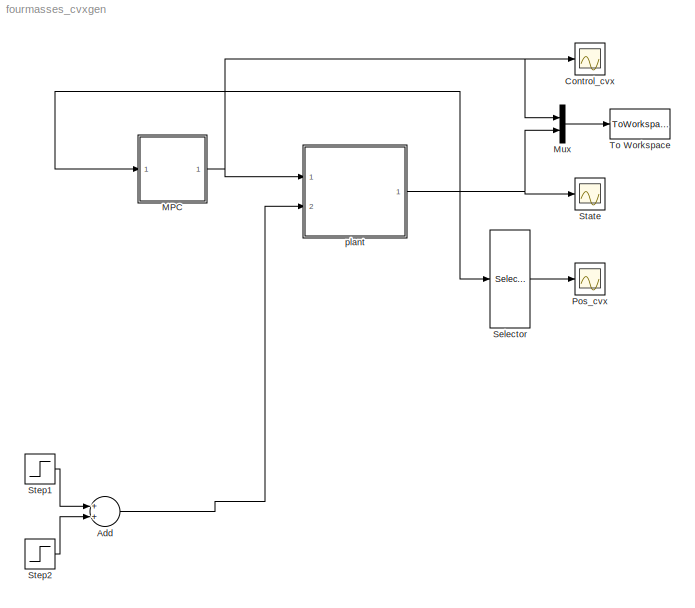
MODEL fourmasses_cvxgen
KIND model
BLOCK [Sum] Add
  InputSameDT = off
  OutDataTypeStr = Inherit: Inherit via internal rule
  Ports = [2, 1]
  SID = 277
  SaturateOnIntegerOverflow = off
BLOCK [Scope] Control_cvx
  DataFormat = StructureWithTime
  Floating = off
  NumInputPorts = 1
  Ports = [1]
  SID = 132
  SampleTime = 0
  SaveName = ScopeData1
  ShowLegends = off
  TimeRange = 60
  YMax = 0.45
  YMin = -0.5
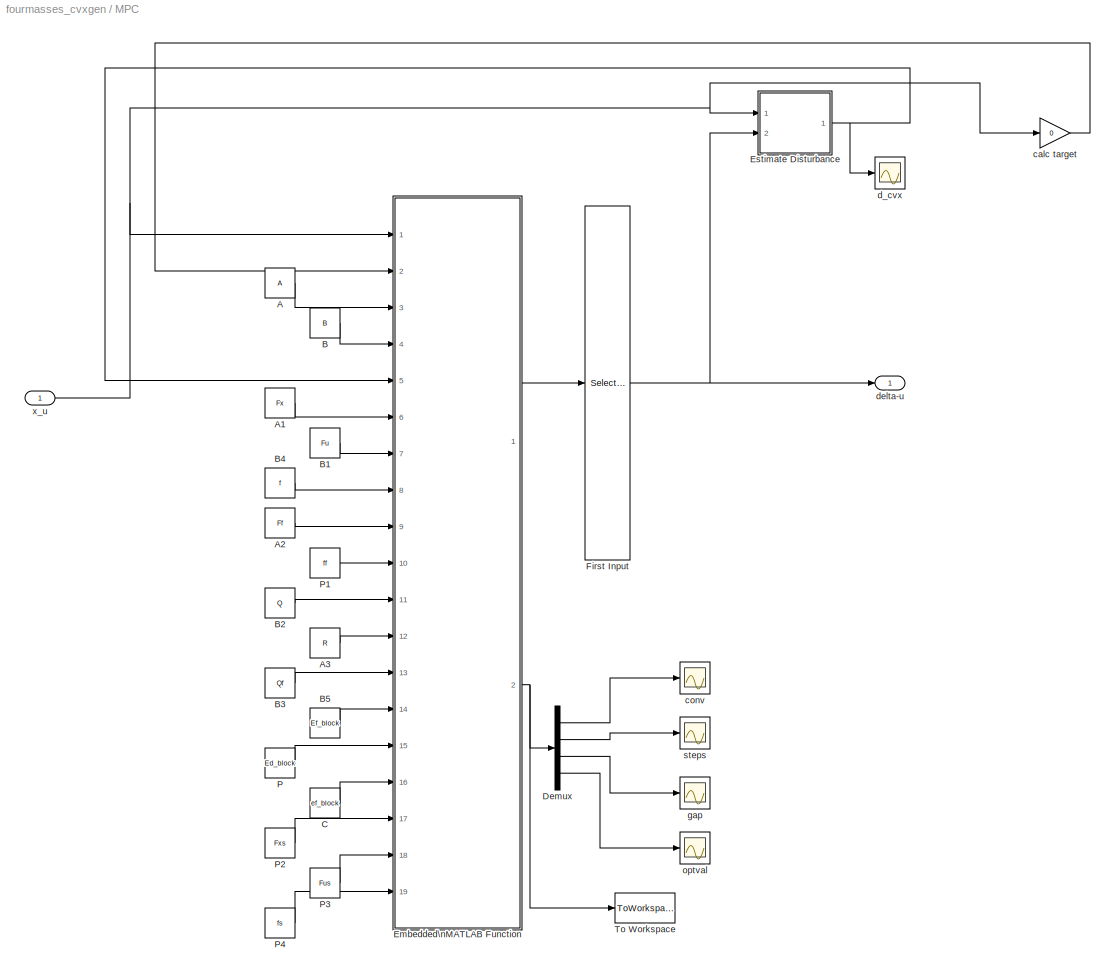
BLOCK [SubSystem] MPC
  FunctionWithSeparateData = off
  MaskHideContents = off
  MinAlgLoopOccurrences = off
  Opaque = off
  Ports = [1, 1]
  PropExecContextOutsideSubsystem = off
  RTWFcnNameOpts = Use subsystem name
  RTWFileNameOpts = Use subsystem name
  RTWSystemCode = Function
  RequestExecContextInheritance = off
  SID = 213
  SystemSampleTime = dt
  TreatAsAtomicUnit = on
BLOCK [Constant] MPC/A
  SID = 216
  Value = A
BLOCK [Constant] MPC/A1
  SID = 217
  Value = Fx
BLOCK [Constant] MPC/A2
  SID = 218
  Value = Ff
  VectorParams1D = off
BLOCK [Constant] MPC/A3
  SID = 219
  Value = R
BLOCK [Constant] MPC/B
  SID = 221
  Value = B
BLOCK [Constant] MPC/B1
  SID = 222
  Value = Fu
BLOCK [Constant] MPC/B2
  SID = 223
  Value = Q
BLOCK [Constant] MPC/B3
  SID = 224
  Value = Qf
BLOCK [Constant] MPC/B4
  SID = 225
  Value = f
BLOCK [Constant] MPC/B5
  SID = 226
  Value = Ef_block
BLOCK [Constant] MPC/C
  SID = 227
  Value = ef_block
BLOCK [Demux] MPC/Demux
  DisplayOption = bar
  Ports = [1, 4]
  SID = 244
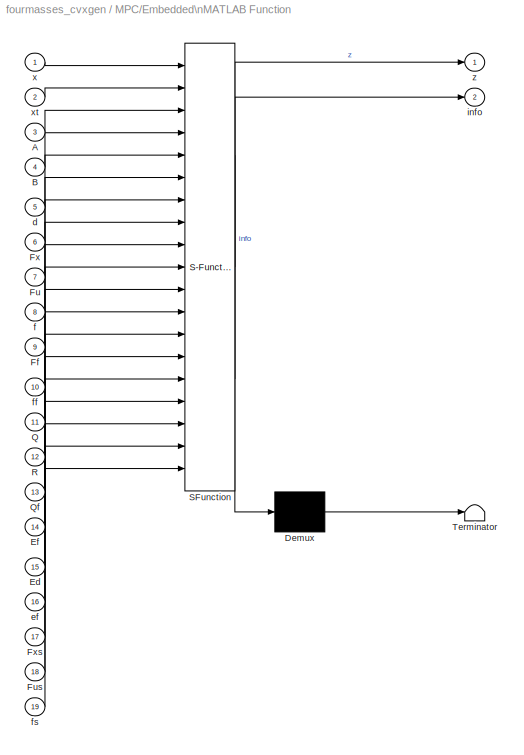
BLOCK [SubSystem] MPC/Embedded\nMATLAB Function
  ErrorFcn = Stateflow.Translate.translate
  FunctionWithSeparateData = off
  MaskDisplay = bgColor = Simulink.Root.ColorString2Rgb(get_param(gcbh, 'BackgroundColor')); image(imread('private/eml_membrane_16.png','png','BackgroundColor',bgColor(1:3)),'center'); disp([10 10 'mpcsolve_simk']);
  MaskHideContents = off
  MaskIconFrame = on
  MaskIconOpaque = on
  MaskIconRotate = none
  MaskIconUnits = normalized
  MaskPortRotate = default
  MaskSelfModifiable = on
  MinAlgLoopOccurrences = off
  Opaque = off
  PermitHierarchicalResolution = ExplicitOnly
  Ports = [19, 2]
  PropExecContextOutsideSubsystem = off
  RTWFileNameOpts = Use subsystem name
  RTWSystemCode = Auto
  RequestExecContextInheritance = off
  SFBlockType = MATLAB Function
  SID = 245
  TreatAsAtomicUnit = on
BLOCK [Demux] MPC/Embedded\nMATLAB Function/ Demux 
  Outputs = 1
  Ports = [1, 1]
  SID = 245::36
BLOCK [S-Function] MPC/Embedded\nMATLAB Function/ SFunction 
  EnableBusSupport = on
  FunctionName = sf_sfun
  PortCounts = [19 3]
  Ports = [19, 3]
  SID = 245::35
  Tag = Stateflow S-Function fourmasses_cvxgen 2
BLOCK [Terminator] MPC/Embedded\nMATLAB Function/ Terminator 
  SID = 245::37
BLOCK [Inport] MPC/Embedded\nMATLAB Function/A
  IconDisplay = Port number
  Port = 3
  SID = 245::17
BLOCK [Inport] MPC/Embedded\nMATLAB Function/B
  IconDisplay = Port number
  Port = 4
  SID = 245::22
BLOCK [Inport] MPC/Embedded\nMATLAB Function/Ed
  IconDisplay = Port number
  Port = 15
  SID = 245::42
BLOCK [Inport] MPC/Embedded\nMATLAB Function/Ef
  IconDisplay = Port number
  Port = 14
  SID = 245::33
BLOCK [Inport] MPC/Embedded\nMATLAB Function/Ff
  IconDisplay = Port number
  Port = 9
  SID = 245::25
BLOCK [Inport] MPC/Embedded\nMATLAB Function/Fu
  IconDisplay = Port number
  Port = 7
  SID = 245::24
BLOCK [Inport] MPC/Embedded\nMATLAB Function/Fus
  IconDisplay = Port number
  Port = 18
  SID = 245::38
BLOCK [Inport] MPC/Embedded\nMATLAB Function/Fx
  IconDisplay = Port number
  Port = 6
  SID = 245::23
BLOCK [Inport] MPC/Embedded\nMATLAB Function/Fxs
  IconDisplay = Port number
  Port = 17
  SID = 245::34
BLOCK [Inport] MPC/Embedded\nMATLAB Function/Q
  IconDisplay = Port number
  Port = 11
  SID = 245::26
BLOCK [Inport] MPC/Embedded\nMATLAB Function/Qf
  IconDisplay = Port number
  Port = 13
  SID = 245::28
BLOCK [Inport] MPC/Embedded\nMATLAB Function/R
  IconDisplay = Port number
  Port = 12
  SID = 245::27
BLOCK [Inport] MPC/Embedded\nMATLAB Function/d
  IconDisplay = Port number
  Port = 5
  SID = 245::41
BLOCK [Inport] MPC/Embedded\nMATLAB Function/ef
  IconDisplay = Port number
  Port = 16
  SID = 245::43
BLOCK [Inport] MPC/Embedded\nMATLAB Function/f
  IconDisplay = Port number
  Port = 8
  SID = 245::30
BLOCK [Inport] MPC/Embedded\nMATLAB Function/ff
  IconDisplay = Port number
  Port = 10
  SID = 245::31
BLOCK [Inport] MPC/Embedded\nMATLAB Function/fs
  IconDisplay = Port number
  Port = 19
  SID = 245::32
BLOCK [Outport] MPC/Embedded\nMATLAB Function/info
  IconDisplay = Port number
  Port = 2
  SID = 245::29
BLOCK [Inport] MPC/Embedded\nMATLAB Function/x
  IconDisplay = Port number
  SID = 245::39
BLOCK [Inport] MPC/Embedded\nMATLAB Function/xt
  IconDisplay = Port number
  Port = 2
  SID = 245::40
BLOCK [Outport] MPC/Embedded\nMATLAB Function/z
  IconDisplay = Port number
  SID = 245::5
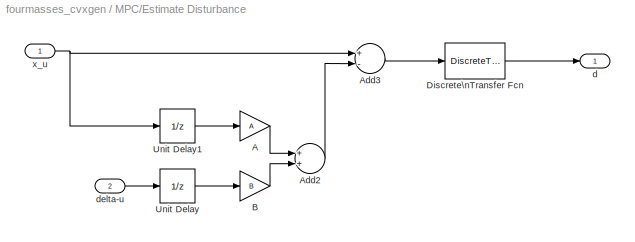
BLOCK [SubSystem] MPC/Estimate Disturbance
  FunctionWithSeparateData = off
  MaskHideContents = off
  MinAlgLoopOccurrences = off
  Opaque = off
  Ports = [2, 1]
  PropExecContextOutsideSubsystem = off
  RTWSystemCode = Auto
  RequestExecContextInheritance = off
  SID = 246
BLOCK [Gain] MPC/Estimate Disturbance/A
  Gain = A
  Multiplication = Matrix(K*u)
  OutDataTypeStr = Inherit: Inherit via internal rule
  ParamDataTypeStr = Inherit: Inherit via internal rule
  SID = 249
  SaturateOnIntegerOverflow = off
BLOCK [Sum] MPC/Estimate Disturbance/Add2
  InputSameDT = off
  OutDataTypeStr = Inherit: Inherit via internal rule
  Ports = [2, 1]
  SID = 250
  SaturateOnIntegerOverflow = off
BLOCK [Sum] MPC/Estimate Disturbance/Add3
  InputSameDT = off
  Inputs = +-
  OutDataTypeStr = Inherit: Inherit via internal rule
  Ports = [2, 1]
  SID = 251
  SaturateOnIntegerOverflow = off
BLOCK [Gain] MPC/Estimate Disturbance/B
  Gain = B
  Multiplication = Matrix(K*u)
  OutDataTypeStr = Inherit: Inherit via internal rule
  ParamDataTypeStr = Inherit: Inherit via internal rule
  SID = 252
  SaturateOnIntegerOverflow = off
BLOCK [DiscreteTransferFcn] MPC/Estimate Disturbance/Discrete\nTransfer Fcn
  Denominator = [1 -0.5]
  InputPortMap = u0
  Numerator = [0.5]
  Ports = [1, 1]
  SID = 253
BLOCK [UnitDelay] MPC/Estimate Disturbance/Unit Delay
  InputProcessing = Elements as channels (sample based)
  SID = 254
  SampleTime = -1
BLOCK [UnitDelay] MPC/Estimate Disturbance/Unit Delay1
  InputProcessing = Elements as channels (sample based)
  SID = 255
  SampleTime = -1
BLOCK [Outport] MPC/Estimate Disturbance/d
  IconDisplay = Port number
  SID = 256
BLOCK [Inport] MPC/Estimate Disturbance/delta-u
  IconDisplay = Port number
  Port = 2
  SID = 248
BLOCK [Inport] MPC/Estimate Disturbance/x_u
  IconDisplay = Port number
  SID = 247
BLOCK [Selector] MPC/First Input
  IndexOptions = Index vector (dialog)
  Indices = 1:2
  InputPortWidth = T*(n+m)
  OutputSizes = 1
  Ports = [1, 1]
  SID = 257
BLOCK [Constant] MPC/P
  SID = 260
  Value = Ed_block
BLOCK [Constant] MPC/P1
  SID = 261
  Value = ff
BLOCK [Constant] MPC/P2
  SID = 262
  Value = Fxs
BLOCK [Constant] MPC/P3
  SID = 263
  Value = Fus
BLOCK [Constant] MPC/P4
  SID = 264
  Value = fs
BLOCK [ToWorkspace] MPC/To Workspace
  MaxDataPoints = inf
  Ports = [1]
  SID = 265
  SampleTime = -1
  VariableName = info_cvx
BLOCK [Gain] MPC/calc target
  Gain = 0
  OutDataTypeStr = Inherit: Inherit via internal rule
  ParamDataTypeStr = Inherit: Inherit via internal rule
  SID = 266
  SaturateOnIntegerOverflow = off
BLOCK [Scope] MPC/conv
  DataFormat = StructureWithTime
  Floating = off
  NumInputPorts = 1
  Ports = [1]
  SID = 267
  SampleTime = 0
  SaveName = ScopeData3
  ShowLegends = off
  YMax = 2.75e-08
  YMin = 1.65436e-24
  ZoomMode = yonly
BLOCK [Scope] MPC/d_cvx
  DataFormat = StructureWithTime
  Floating = off
  NumInputPorts = 1
  Ports = [1]
  SID = 269
  SampleTime = 0
  SaveName = ScopeData6
  ShowLegends = off
  YMax = 0.002
  YMin = -0.00025
  ZoomMode = yonly
BLOCK [Outport] MPC/delta-u
  IconDisplay = Port number
  SID = 276
BLOCK [Scope] MPC/gap
  DataFormat = StructureWithTime
  Floating = off
  NumInputPorts = 1
  Ports = [1]
  SID = 271
  SampleTime = 0
  SaveName = ScopeData5
  ShowLegends = off
  YMax = 2.75e-08
  YMin = 1.65436e-24
  ZoomMode = yonly
BLOCK [Scope] MPC/optval
  DataFormat = StructureWithTime
  Floating = off
  NumInputPorts = 1
  Ports = [1]
  SID = 273
  SampleTime = 0
  SaveName = ScopeData9
  ShowLegends = off
  YMax = 2.75e-08
  YMin = 1.65436e-24
  ZoomMode = yonly
BLOCK [Scope] MPC/steps
  DataFormat = StructureWithTime
  Floating = off
  NumInputPorts = 1
  Ports = [1]
  SID = 274
  SampleTime = 0
  SaveName = ScopeData4
  ShowLegends = off
  YMax = 2.75e-08
  YMin = 1.65436e-24
  ZoomMode = yonly
BLOCK [Inport] MPC/x_u
  IconDisplay = Port number
  SID = 214
BLOCK [Mux] Mux
  DisplayOption = bar
  Inputs = 2
  Ports = [2, 1]
  SID = 280
BLOCK [Scope] Pos_cvx
  DataFormat = StructureWithTime
  Floating = off
  NumInputPorts = 1
  Ports = [1]
  SID = 136
  SampleTime = 0
  SaveName = ScopeData2
  ShowLegends = off
  YMax = 0.8
  YMin = -0.7
  ZoomMode = yonly
BLOCK [Selector] Selector
  IndexOptions = Index vector (dialog)
  Indices = [1:4]
  InputPortWidth = 8
  OutputSizes = 1
  Ports = [1, 1]
  SID = 135
BLOCK [Scope] State
  DataFormat = StructureWithTime
  Floating = off
  NumInputPorts = 1
  Ports = [1]
  SID = 46
  SampleTime = 0
  ShowLegends = off
  YMax = 0.8
  YMin = -0.7
BLOCK [Step] Step1
  After = [0.5;0;0;0]
  Before = zeros(4,1)
  SID = 278
  SampleTime = 0
  Time = 10
BLOCK [Step] Step2
  After = -[0.5;0;0;0]
  Before = zeros(4,1)
  SID = 279
  SampleTime = 0
  Time = 30
BLOCK [ToWorkspace] To Workspace
  MaxDataPoints = inf
  Ports = [1]
  SID = 281
  SampleTime = -1
  VariableName = simout_cvx
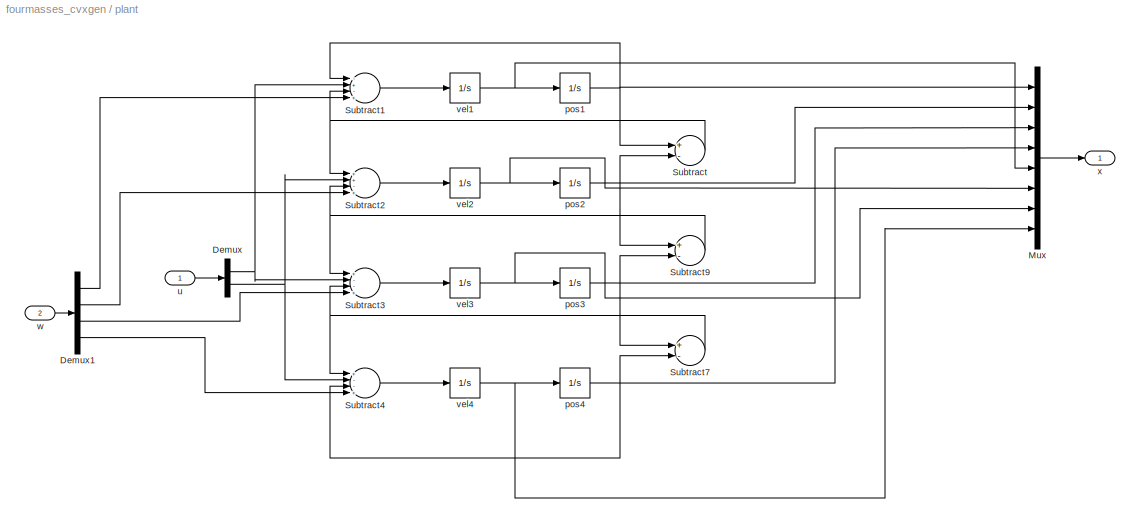
BLOCK [SubSystem] plant
  FunctionWithSeparateData = off
  MaskHideContents = off
  MinAlgLoopOccurrences = off
  Opaque = off
  Ports = [2, 1]
  PropExecContextOutsideSubsystem = off
  RTWSystemCode = Auto
  RequestExecContextInheritance = off
  SID = 26
BLOCK [Demux] plant/Demux
  DisplayOption = bar
  Outputs = 2
  Ports = [1, 2]
  SID = 37
BLOCK [Demux] plant/Demux1
  DisplayOption = bar
  Ports = [1, 4]
  SID = 48
BLOCK [Mux] plant/Mux
  DisplayOption = bar
  Inputs = 8
  Ports = [8, 1]
  SID = 39
BLOCK [Sum] plant/Subtract
  InputSameDT = off
  Inputs = +-
  OutDataTypeStr = Inherit: Inherit via internal rule
  Ports = [2, 1]
  SID = 13
  SaturateOnIntegerOverflow = off
BLOCK [Sum] plant/Subtract1
  InputSameDT = off
  Inputs = -+-+
  OutDataTypeStr = Inherit: Inherit via internal rule
  Ports = [4, 1]
  SID = 14
  SaturateOnIntegerOverflow = off
BLOCK [Sum] plant/Subtract2
  InputSameDT = off
  Inputs = ++-+
  OutDataTypeStr = Inherit: Inherit via internal rule
  Ports = [4, 1]
  SID = 15
  SaturateOnIntegerOverflow = off
BLOCK [Sum] plant/Subtract3
  InputSameDT = off
  Inputs = +--+
  OutDataTypeStr = Inherit: Inherit via internal rule
  Ports = [4, 1]
  SID = 16
  SaturateOnIntegerOverflow = off
BLOCK [Sum] plant/Subtract4
  InputSameDT = off
  Inputs = +--+
  OutDataTypeStr = Inherit: Inherit via internal rule
  Ports = [4, 1]
  SID = 17
  SaturateOnIntegerOverflow = off
BLOCK [Sum] plant/Subtract7
  InputSameDT = off
  Inputs = +-
  OutDataTypeStr = Inherit: Inherit via internal rule
  Ports = [2, 1]
  SID = 20
  SaturateOnIntegerOverflow = off
BLOCK [Sum] plant/Subtract9
  InputSameDT = off
  Inputs = +-
  OutDataTypeStr = Inherit: Inherit via internal rule
  Ports = [2, 1]
  SID = 22
  SaturateOnIntegerOverflow = off
BLOCK [Integrator] plant/pos1
  Ports = [1, 1]
  SID = 1
BLOCK [Integrator] plant/pos2
  Ports = [1, 1]
  SID = 3
BLOCK [Integrator] plant/pos3
  Ports = [1, 1]
  SID = 5
BLOCK [Integrator] plant/pos4
  Ports = [1, 1]
  SID = 7
BLOCK [Inport] plant/u
  IconDisplay = Port number
  SID = 38
BLOCK [Integrator] plant/vel1
  Ports = [1, 1]
  SID = 2
BLOCK [Integrator] plant/vel2
  Ports = [1, 1]
  SID = 4
BLOCK [Integrator] plant/vel3
  Ports = [1, 1]
  SID = 6
BLOCK [Integrator] plant/vel4
  Ports = [1, 1]
  SID = 8
BLOCK [Inport] plant/w
  IconDisplay = Port number
  Port = 2
  SID = 49
BLOCK [Outport] plant/x
  IconDisplay = Port number
  SID = 40
LINE Add:1 -> plant:2
LINE MPC/A1:1 -> MPC/Embedded\nMATLAB Function:6
LINE MPC/A2:1 -> MPC/Embedded\nMATLAB Function:9
LINE MPC/A3:1 -> MPC/Embedded\nMATLAB Function:12
LINE MPC/A:1 -> MPC/Embedded\nMATLAB Function:3
LINE MPC/B1:1 -> MPC/Embedded\nMATLAB Function:7
LINE MPC/B2:1 -> MPC/Embedded\nMATLAB Function:11
LINE MPC/B3:1 -> MPC/Embedded\nMATLAB Function:13
LINE MPC/B4:1 -> MPC/Embedded\nMATLAB Function:8
LINE MPC/B5:1 -> MPC/Embedded\nMATLAB Function:14
LINE MPC/B:1 -> MPC/Embedded\nMATLAB Function:4
LINE MPC/C:1 -> MPC/Embedded\nMATLAB Function:16
LINE MPC/Demux:1 -> MPC/conv:1
LINE MPC/Demux:2 -> MPC/steps:1
LINE MPC/Demux:3 -> MPC/gap:1
LINE MPC/Demux:4 -> MPC/optval:1
LINE MPC/Embedded\nMATLAB Function/ Demux :1 -> MPC/Embedded\nMATLAB Function/ Terminator :1
LINE MPC/Embedded\nMATLAB Function/ SFunction :1 -> MPC/Embedded\nMATLAB Function/ Demux :1
LINE MPC/Embedded\nMATLAB Function/ SFunction :2 -> MPC/Embedded\nMATLAB Function/z:1
LINE MPC/Embedded\nMATLAB Function/ SFunction :3 -> MPC/Embedded\nMATLAB Function/info:1
LINE MPC/Embedded\nMATLAB Function/A:1 -> MPC/Embedded\nMATLAB Function/ SFunction :3
LINE MPC/Embedded\nMATLAB Function/B:1 -> MPC/Embedded\nMATLAB Function/ SFunction :4
LINE MPC/Embedded\nMATLAB Function/Ed:1 -> MPC/Embedded\nMATLAB Function/ SFunction :15
LINE MPC/Embedded\nMATLAB Function/Ef:1 -> MPC/Embedded\nMATLAB Function/ SFunction :14
LINE MPC/Embedded\nMATLAB Function/Ff:1 -> MPC/Embedded\nMATLAB Function/ SFunction :9
LINE MPC/Embedded\nMATLAB Function/Fu:1 -> MPC/Embedded\nMATLAB Function/ SFunction :7
LINE MPC/Embedded\nMATLAB Function/Fus:1 -> MPC/Embedded\nMATLAB Function/ SFunction :18
LINE MPC/Embedded\nMATLAB Function/Fx:1 -> MPC/Embedded\nMATLAB Function/ SFunction :6
LINE MPC/Embedded\nMATLAB Function/Fxs:1 -> MPC/Embedded\nMATLAB Function/ SFunction :17
LINE MPC/Embedded\nMATLAB Function/Q:1 -> MPC/Embedded\nMATLAB Function/ SFunction :11
LINE MPC/Embedded\nMATLAB Function/Qf:1 -> MPC/Embedded\nMATLAB Function/ SFunction :13
LINE MPC/Embedded\nMATLAB Function/R:1 -> MPC/Embedded\nMATLAB Function/ SFunction :12
LINE MPC/Embedded\nMATLAB Function/d:1 -> MPC/Embedded\nMATLAB Function/ SFunction :5
LINE MPC/Embedded\nMATLAB Function/ef:1 -> MPC/Embedded\nMATLAB Function/ SFunction :16
LINE MPC/Embedded\nMATLAB Function/f:1 -> MPC/Embedded\nMATLAB Function/ SFunction :8
LINE MPC/Embedded\nMATLAB Function/ff:1 -> MPC/Embedded\nMATLAB Function/ SFunction :10
LINE MPC/Embedded\nMATLAB Function/fs:1 -> MPC/Embedded\nMATLAB Function/ SFunction :19
LINE MPC/Embedded\nMATLAB Function/x:1 -> MPC/Embedded\nMATLAB Function/ SFunction :1
LINE MPC/Embedded\nMATLAB Function/xt:1 -> MPC/Embedded\nMATLAB Function/ SFunction :2
LINE MPC/Embedded\nMATLAB Function:1 -> MPC/First Input:1
NET MPC/Embedded\nMATLAB Function:2 -> MPC/Demux:1, MPC/To Workspace:1
LINE MPC/Estimate Disturbance/A:1 -> MPC/Estimate Disturbance/Add2:1
LINE MPC/Estimate Disturbance/Add2:1 -> MPC/Estimate Disturbance/Add3:2
LINE MPC/Estimate Disturbance/Add3:1 -> MPC/Estimate Disturbance/Discrete\nTransfer Fcn:1
LINE MPC/Estimate Disturbance/B:1 -> MPC/Estimate Disturbance/Add2:2
LINE MPC/Estimate Disturbance/Discrete\nTransfer Fcn:1 -> MPC/Estimate Disturbance/d:1
LINE MPC/Estimate Disturbance/Unit Delay1:1 -> MPC/Estimate Disturbance/A:1
LINE MPC/Estimate Disturbance/Unit Delay:1 -> MPC/Estimate Disturbance/B:1
LINE MPC/Estimate Disturbance/delta-u:1 -> MPC/Estimate Disturbance/Unit Delay:1
NET MPC/Estimate Disturbance/x_u:1 -> MPC/Estimate Disturbance/Add3:1, MPC/Estimate Disturbance/Unit Delay1:1
NET MPC/Estimate Disturbance:1 -> MPC/Embedded\nMATLAB Function:5, MPC/d_cvx:1
NET MPC/First Input:1 -> MPC/Estimate Disturbance:2, MPC/delta-u:1
LINE MPC/P1:1 -> MPC/Embedded\nMATLAB Function:10
LINE MPC/P2:1 -> MPC/Embedded\nMATLAB Function:17
LINE MPC/P3:1 -> MPC/Embedded\nMATLAB Function:18
LINE MPC/P4:1 -> MPC/Embedded\nMATLAB Function:19
LINE MPC/P:1 -> MPC/Embedded\nMATLAB Function:15
LINE MPC/calc target:1 -> MPC/Embedded\nMATLAB Function:2
NET MPC/x_u:1 -> MPC/Embedded\nMATLAB Function:1, MPC/Estimate Disturbance:1, MPC/calc target:1
NET MPC:1 -> Control_cvx:1, Mux:1, plant:1
LINE Mux:1 -> To Workspace:1
LINE Selector:1 -> Pos_cvx:1
LINE Step1:1 -> Add:1
LINE Step2:1 -> Add:2
LINE plant/Demux1:1 -> plant/Subtract1:4
LINE plant/Demux1:2 -> plant/Subtract2:4
LINE plant/Demux1:3 -> plant/Subtract3:4
LINE plant/Demux1:4 -> plant/Subtract4:4
NET plant/Demux:1 -> plant/Subtract1:2, plant/Subtract3:2
NET plant/Demux:2 -> plant/Subtract2:2, plant/Subtract4:2
LINE plant/Mux:1 -> plant/x:1
LINE plant/Subtract1:1 -> plant/vel1:1
LINE plant/Subtract2:1 -> plant/vel2:1
LINE plant/Subtract3:1 -> plant/vel3:1
LINE plant/Subtract4:1 -> plant/vel4:1
NET plant/Subtract7:1 -> plant/Subtract3:3, plant/Subtract4:1
NET plant/Subtract9:1 -> plant/Subtract2:3, plant/Subtract3:1
NET plant/Subtract:1 -> plant/Subtract1:3, plant/Subtract2:1
NET plant/pos1:1 -> plant/Mux:1, plant/Subtract1:1, plant/Subtract:1
NET plant/pos2:1 -> plant/Mux:2, plant/Subtract9:1, plant/Subtract:2
NET plant/pos3:1 -> plant/Mux:3, plant/Subtract7:1, plant/Subtract9:2
NET plant/pos4:1 -> plant/Mux:4, plant/Subtract4:3, plant/Subtract7:2
LINE plant/u:1 -> plant/Demux:1
NET plant/vel1:1 -> plant/Mux:5, plant/pos1:1
NET plant/vel2:1 -> plant/Mux:6, plant/pos2:1
NET plant/vel3:1 -> plant/Mux:7, plant/pos3:1
NET plant/vel4:1 -> plant/Mux:8, plant/pos4:1
LINE plant/w:1 -> plant/Demux1:1
NET plant:1 -> MPC:1, Mux:2, Selector:1, State:1
note: NET lines group one-source signal fan-out (src -> all destinations, sorted); 1:1 wires keep LINE
CHART MPC/Embedded\nMATLAB Function states=1 transitions=1
  STATE_LABEL 'eML_blk_kernel()'
